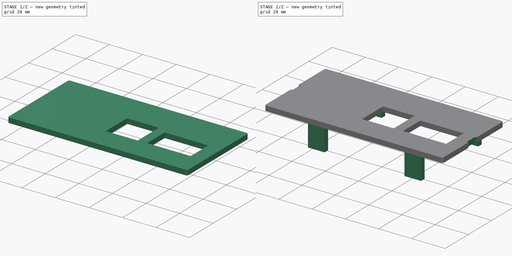
[diagram: build sequence overview — one tinted view per stage of 2, left to right]
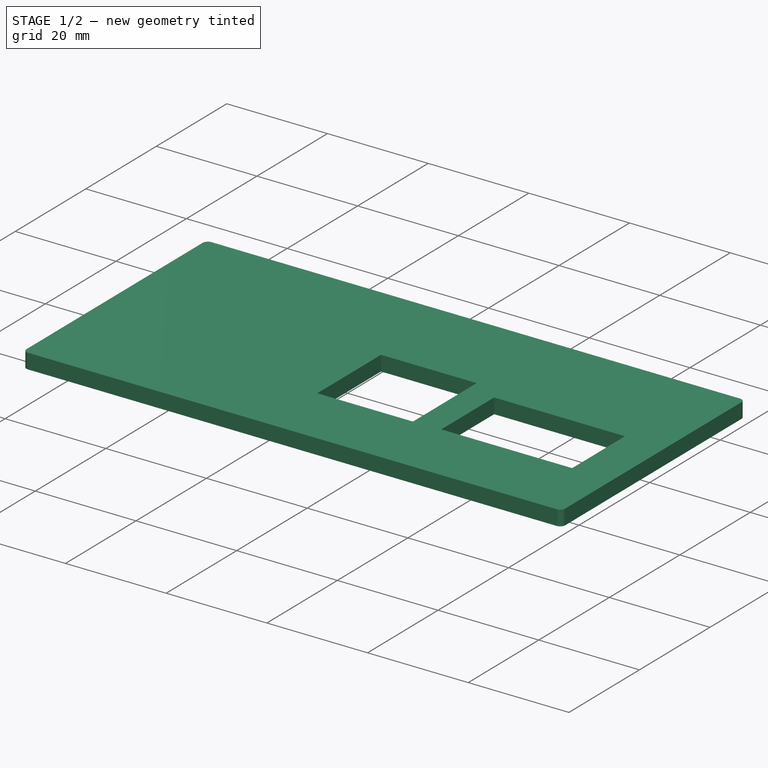
[diagram: stage 1 of 2 — iso view after this stage's code; geometry added in this stage tinted green]
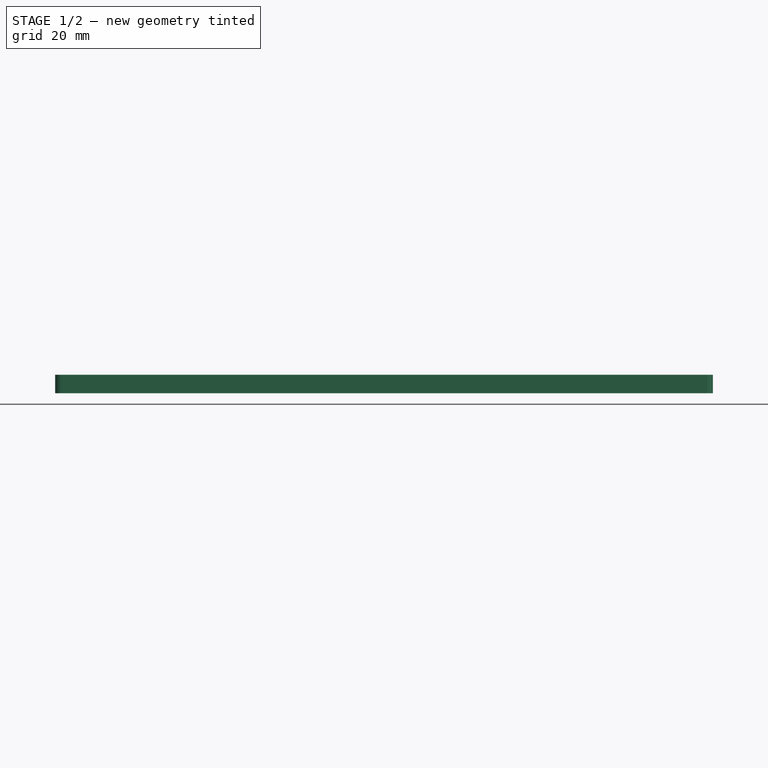
[diagram: stage 1 of 2 — front view after this stage's code; geometry added in this stage tinted green]
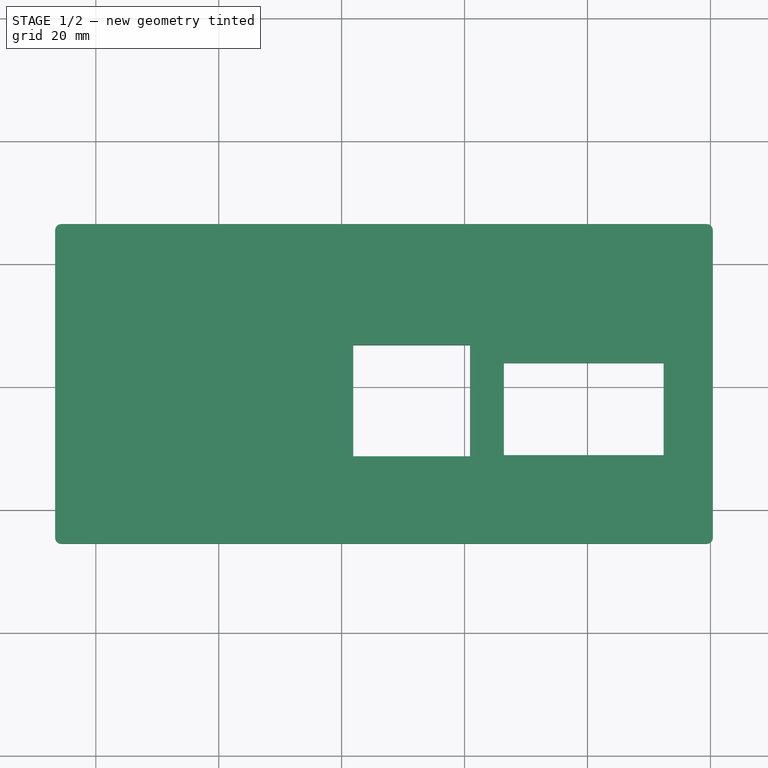
[diagram: stage 1 of 2 — top view after this stage's code; geometry added in this stage tinted green]
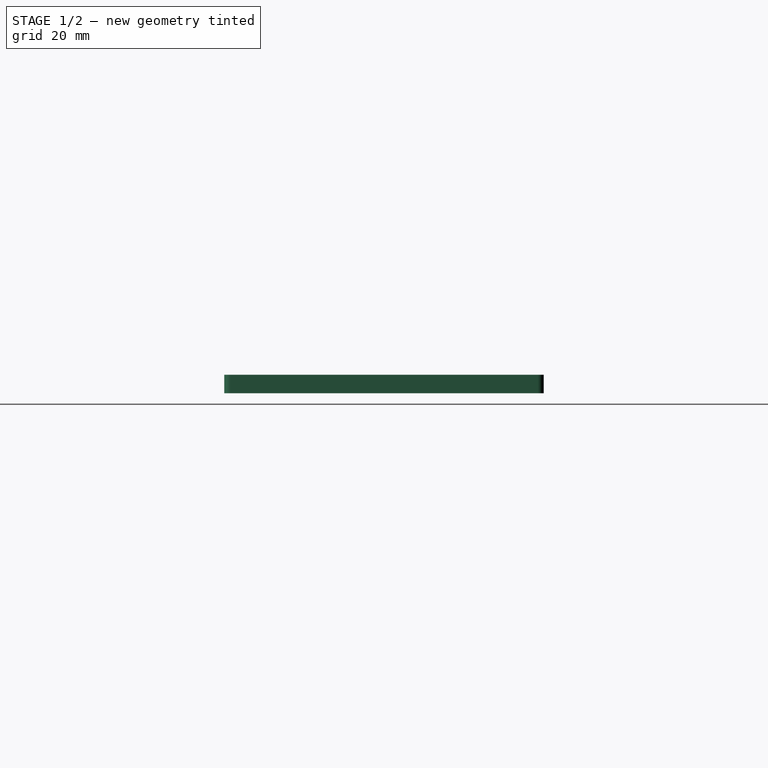
[diagram: stage 1 of 2 — right view after this stage's code; geometry added in this stage tinted green]
FCSTD DOCUMENT  (FreeCAD 2023.131R26244 +5365 (Git))
Label: ESP32FreqencyCounterCover
License: All rights reserved
LicenseURL: http://en.wikipedia.org/wiki/All_rights_reserved
objects: Sketcher::SketchObject×3, PartDesign::Pad×2, PartDesign::Fillet×1, PartDesign::ShapeBinder×1, PartDesign::Pocket×1, PartDesign::Body×1
note: 20 computed .brp shape members not serialized (recipe doc carries the construction recipe); baked Part::Feature solids carry a one-line shape summary decoded from their .brp

FEATURE [Sketcher::SketchObject] Sketch
  ArcFitTolerance = 1e-06
  ExternalBSplineMaxDegree = 5
  ExternalBSplineTolerance = 0.0001
  FixShape = 1
  FullyConstrained = false
  InternalTolerance = 1e-06
  InvalidShape = false
  MakeInternals = true
  TreeRank = 12
  ValidateShape = false
  sketch-geometry (12):
    g0: LineSegment StartX=-46.6117 StartY=26.5212 StartZ=0 EndX=60.3883 EndY=26.5212 EndZ=0
    g1: LineSegment StartX=60.3883 StartY=26.5212 StartZ=0 EndX=60.3883 EndY=-25.4788 EndZ=0
    g2: LineSegment StartX=60.3883 StartY=-25.4788 StartZ=0 EndX=-46.6117 EndY=-25.4788 EndZ=0
    g3: LineSegment StartX=-46.6117 StartY=-25.4788 StartZ=0 EndX=-46.6117 EndY=26.5212 EndZ=0
    g4: LineSegment StartX=1.8883 StartY=6.81684 StartZ=0 EndX=20.8883 EndY=6.81684 EndZ=0
    g5: LineSegment StartX=20.8883 StartY=6.81684 StartZ=0 EndX=20.8883 EndY=-11.2588 EndZ=0
    g6: LineSegment StartX=20.8883 StartY=-11.2588 StartZ=0 EndX=1.8883 EndY=-11.2588 EndZ=0
    g7: LineSegment StartX=1.8883 StartY=-11.2588 StartZ=0 EndX=1.8883 EndY=6.81684 EndZ=0
    g8: LineSegment StartX=26.3883 StartY=3.91123 StartZ=0 EndX=52.3883 EndY=3.91123 EndZ=0
    g9: LineSegment StartX=52.3883 StartY=3.91123 StartZ=0 EndX=52.3883 EndY=-11.0888 EndZ=0
    g10: LineSegment StartX=52.3883 StartY=-11.0888 StartZ=0 EndX=26.3883 EndY=-11.0888 EndZ=0
    g11: LineSegment StartX=26.3883 StartY=-11.0888 StartZ=0 EndX=26.3883 EndY=3.91123 EndZ=0
  constraints (33):
    c: Coincident(g0,g1)
    c: Coincident(g1,g2)
    c: Coincident(g2,g3)
    c: Coincident(g3,g0)
    c: Horizontal(g0)
    c: Horizontal(g2)
    c: Vertical(g1)
    c: Vertical(g3)
    c: Coincident(g4,g5)
    c: Coincident(g5,g6)
    c: Coincident(g6,g7)
    c: Coincident(g7,g4)
    c: Horizontal(g4)
    c: Horizontal(g6)
    c: Vertical(g5)
    c: Vertical(g7)
    c: Coincident(g8,g9)
    c: Coincident(g9,g10)
    c: Coincident(g10,g11)
    c: Coincident(g11,g8)
    c: Horizontal(g8)
    c: Horizontal(g10)
    c: Vertical(g9)
    c: Vertical(g11)
    c: DistanceY(g9,g9) = 15
    c: DistanceY(g1,g1) = 52
    c: DistanceX(g9,g1) = 8
    c: DistanceX(g10,g10) = 26
    c: DistanceX(g5,g1) = 39.5
    c: DistanceX(g6,g6) = 19
    c: DistanceX(g0,g0) = 107
    c: DistanceY(g1,g5) = 14.22
    c: DistanceY(g1,g9) = 14.39
FEATURE [PartDesign::Pad] Pad
  AddSubType = 0
  AlongSketchNormal = false
  AutoTaperInnerAngle = true
  CheckUpToFaceLimits = true
  ClaimChildren = false
  Direction = (0,0,1)
  Fit = 0
  FitJoin = 0
  FixShape = 1
  InnerFit = 0
  InnerFitJoin = 0
  InvalidShape = false
  Length = 3
  Length2 = 100
  Linearize = true
  NewSolid = false
  Profile = -> Sketch
  Suppress = false
  TaperInnerAngle = 0
  TaperInnerAngleRev = 0
  TreeRank = 13
  Type = 0
  ValidateShape = false
  _ProfileBasedVersion = 1
FEATURE [PartDesign::Fillet] Fillet
  AddSubType = 0
  Base = -> Pad [Edge1,Edge2,Edge5,Edge8]
  BaseFeature = -> Pad
  FixShape = 1
  InvalidShape = false
  NewSolid = false
  Radius = 1
  SupportTransform = false
  Suppress = false
  TreeRank = 14
  ValidateShape = false
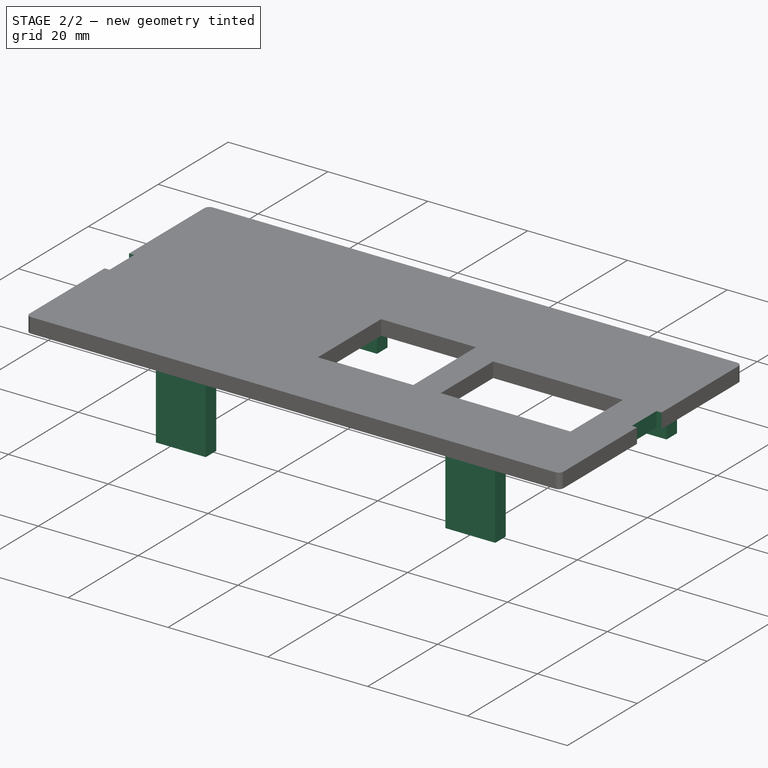
[diagram: stage 2 of 2 — iso view after this stage's code; geometry added in this stage tinted green]
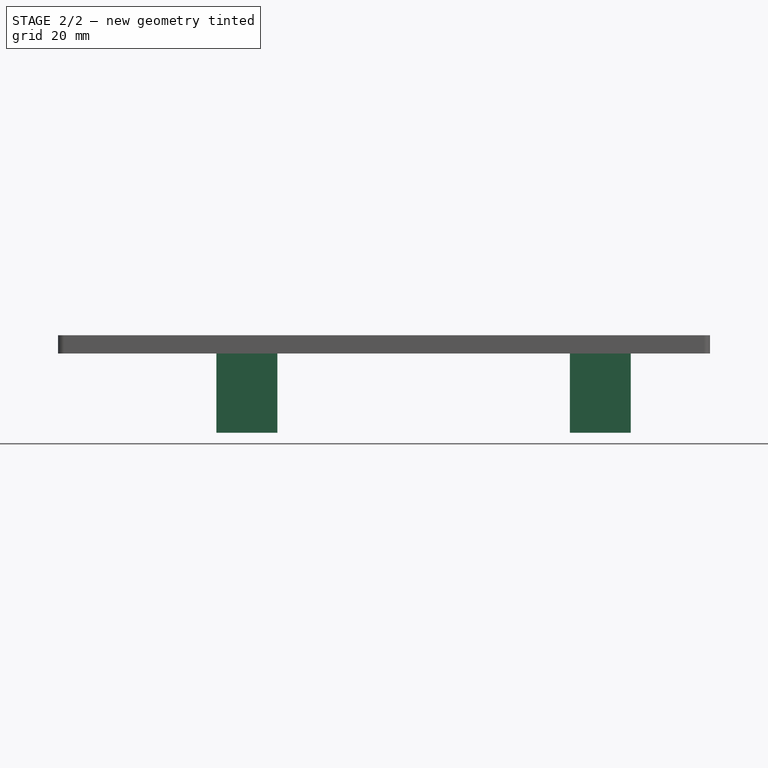
[diagram: stage 2 of 2 — front view after this stage's code; geometry added in this stage tinted green]
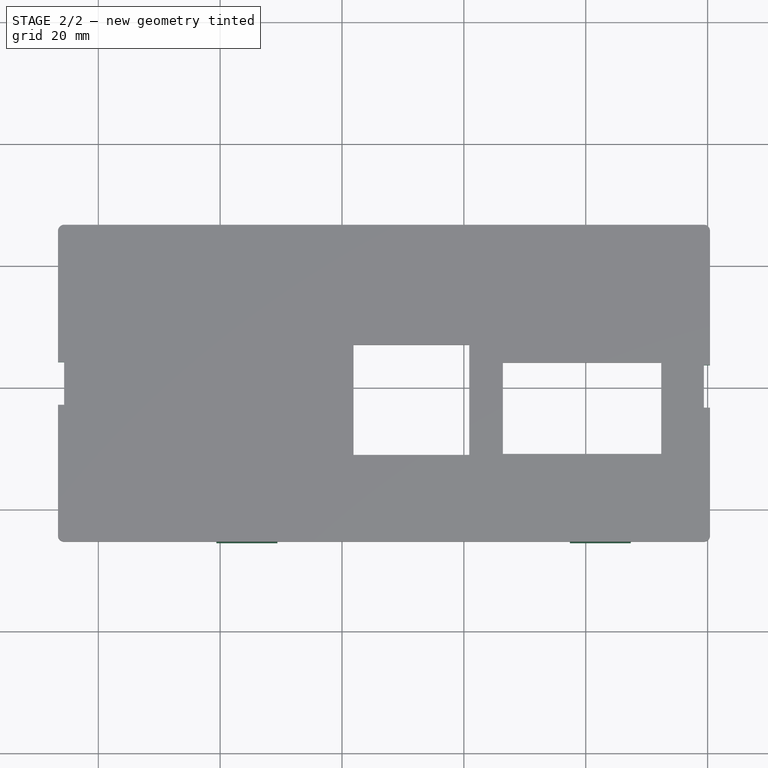
[diagram: stage 2 of 2 — top view after this stage's code; geometry added in this stage tinted green]
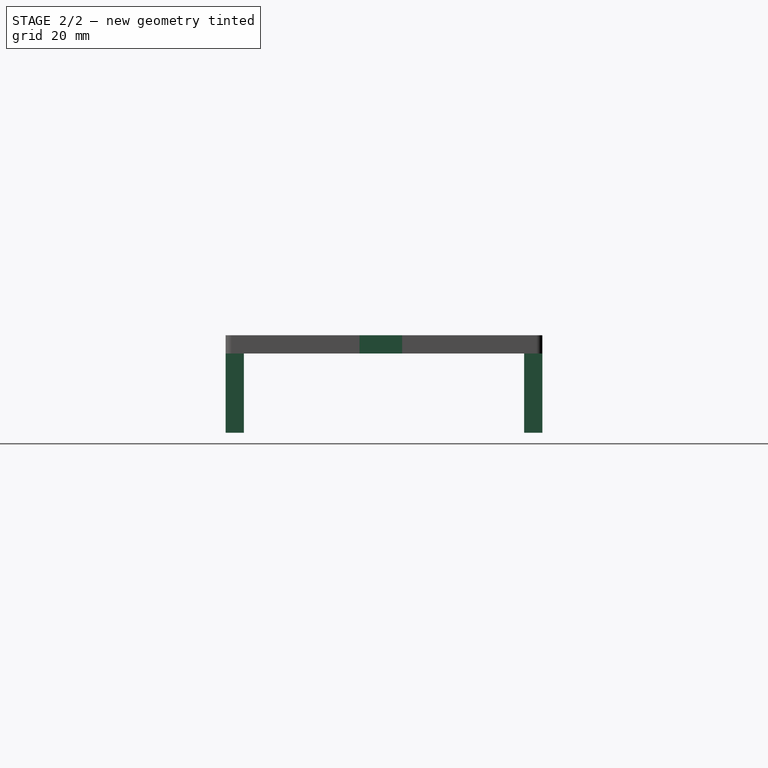
[diagram: stage 2 of 2 — right view after this stage's code; geometry added in this stage tinted green]
FEATURE [PartDesign::ShapeBinder] ShapeBinder
  FixShape = 1
  InvalidShape = false
  Support = -> [Fillet]
  TraceSupport = false
  TreeRank = 15
  ValidateShape = false
FEATURE [Sketcher::SketchObject] Sketch001
  ArcFitTolerance = 1e-06
  AttachmentSupport = -> [ShapeBinder]
  ExternalBSplineMaxDegree = 5
  ExternalBSplineTolerance = 0.0001
  ExternalGeometry = -> [Fillet]
  FixShape = 1
  FullyConstrained = false
  InternalTolerance = 1e-06
  InvalidShape = false
  MakeInternals = true
  MapMode = 5
  Placement = pos=(0,0,0) rot=(1,0,0;3.14159rad)
  Support = -> [ShapeBinder]
  TreeRank = 16
  ValidateShape = false
  sketch-geometry (8):
    g0: LineSegment StartX=-46.6117 StartY=3.01862 StartZ=0 EndX=-45.6117 EndY=3.01862 EndZ=0
    g1: LineSegment StartX=-45.6117 StartY=3.01862 StartZ=0 EndX=-45.6117 EndY=-3.98138 EndZ=0
    g2: LineSegment StartX=-45.6117 StartY=-3.98138 StartZ=0 EndX=-46.6117 EndY=-3.98138 EndZ=0
    g3: LineSegment StartX=-46.6117 StartY=-3.98138 StartZ=0 EndX=-46.6117 EndY=3.01862 EndZ=0
    g4: LineSegment StartX=60.3883 StartY=3.5 StartZ=0 EndX=59.3883 EndY=3.5 EndZ=0
    g5: LineSegment StartX=59.3883 StartY=3.5 StartZ=0 EndX=59.3883 EndY=-3.5 EndZ=0
    g6: LineSegment StartX=59.3883 StartY=-3.5 StartZ=0 EndX=60.3883 EndY=-3.5 EndZ=0
    g7: LineSegment StartX=60.3883 StartY=-3.5 StartZ=0 EndX=60.3883 EndY=3.5 EndZ=0
  constraints (22):
    c: Coincident(g0,g1)
    c: Coincident(g1,g2)
    c: Coincident(g2,g3)
    c: Coincident(g3,g0)
    c: Horizontal(g0)
    c: Horizontal(g2)
    c: Vertical(g1)
    c: Vertical(g3)
    c: DistanceY(g1,g1) = 7
    c: DistanceX(g2,g2) = 1
    c: PointOnObject(g2,g-5)
    c: Coincident(g4,g5)
    c: Coincident(g5,g6)
    c: Coincident(g6,g7)
    c: Coincident(g7,g4)
    c: Horizontal(g4)
    c: Horizontal(g6)
    c: Vertical(g7)
    c: DistanceX(g6,g6) = 1
    c: DistanceY(g6,g4) = 7
    c: PointOnObject(g6,g-4)
    c: Symmetric(g5,g4,g-1)
FEATURE [PartDesign::Pocket] Pocket
  AddSubType = 1
  AutoTaperInnerAngle = true
  BaseFeature = -> Fillet
  CheckUpToFaceLimits = true
  ClaimChildren = false
  Fit = 0
  FitJoin = 0
  FixShape = 1
  InnerFit = 0
  InnerFitJoin = 0
  InvalidShape = false
  Length = 5
  Length2 = 100
  Linearize = true
  NewSolid = false
  Profile = -> Sketch001
  Suppress = false
  TaperInnerAngle = 0
  TaperInnerAngleRev = 0
  TreeRank = 17
  Type = 1
  ValidateShape = false
  _ProfileBasedVersion = 1
  _Version = 1
FEATURE [Sketcher::SketchObject] Sketch002
  ArcFitTolerance = 1e-06
  AttachmentSupport = -> [ShapeBinder]
  ExternalBSplineMaxDegree = 5
  ExternalBSplineTolerance = 0.0001
  ExternalGeometry = -> [ShapeBinder]
  FixShape = 1
  FullyConstrained = true
  InternalTolerance = 1e-06
  InvalidShape = false
  MakeInternals = true
  MapMode = 5
  Placement = pos=(0,0,0) rot=(1,0,0;3.14159rad)
  Support = -> [ShapeBinder]
  TreeRank = 18
  ValidateShape = false
  sketch-geometry (16):
    g0: LineSegment StartX=-20.6117 StartY=25.4788 StartZ=0 EndX=-10.6117 EndY=25.4788 EndZ=0
    g1: LineSegment StartX=-10.6117 StartY=25.4788 StartZ=0 EndX=-10.6117 EndY=22.4788 EndZ=0
    g2: LineSegment StartX=-10.6117 StartY=22.4788 StartZ=0 EndX=-20.6117 EndY=22.4788 EndZ=0
    g3: LineSegment StartX=-20.6117 StartY=22.4788 StartZ=0 EndX=-20.6117 EndY=25.4788 EndZ=0
    g4: LineSegment StartX=37.3883 StartY=25.4788 StartZ=0 EndX=47.3883 EndY=25.4788 EndZ=0
    g5: LineSegment StartX=47.3883 StartY=25.4788 StartZ=0 EndX=47.3883 EndY=22.4788 EndZ=0
    g6: LineSegment StartX=47.3883 StartY=22.4788 StartZ=0 EndX=37.3883 EndY=22.4788 EndZ=0
    g7: LineSegment StartX=37.3883 StartY=22.4788 StartZ=0 EndX=37.3883 EndY=25.4788 EndZ=0
    g8: LineSegment StartX=-20.6117 StartY=-23.5212 StartZ=0 EndX=-10.6117 EndY=-23.5212 EndZ=0
    g9: LineSegment StartX=-10.6117 StartY=-23.5212 StartZ=0 EndX=-10.6117 EndY=-26.5212 EndZ=0
    g10: LineSegment StartX=-10.6117 StartY=-26.5212 StartZ=0 EndX=-20.6117 EndY=-26.5212 EndZ=0
    g11: LineSegment StartX=-20.6117 StartY=-26.5212 StartZ=0 EndX=-20.6117 EndY=-23.5212 EndZ=0
    g12: LineSegment StartX=37.3883 StartY=-23.5212 StartZ=0 EndX=47.3883 EndY=-23.5212 EndZ=0
    g13: LineSegment StartX=47.3883 StartY=-23.5212 StartZ=0 EndX=47.3883 EndY=-26.5212 EndZ=0
    g14: LineSegment StartX=47.3883 StartY=-26.5212 StartZ=0 EndX=37.3883 EndY=-26.5212 EndZ=0
    g15: LineSegment StartX=37.3883 StartY=-26.5212 StartZ=0 EndX=37.3883 EndY=-23.5212 EndZ=0
  constraints (48):
    c: Coincident(g0,g1)
    c: Coincident(g1,g2)
    c: Coincident(g2,g3)
    c: Coincident(g3,g0)
    c: Horizontal(g0)
    c: Horizontal(g2)
    c: Vertical(g1)
    c: Vertical(g3)
    c: PointOnObject(g0,g-4)
    c: Coincident(g4,g5)
    c: Coincident(g5,g6)
    c: Coincident(g6,g7)
    c: Coincident(g7,g4)
    c: Horizontal(g4)
    c: Horizontal(g6)
    c: Vertical(g5)
    c: Vertical(g7)
    c: PointOnObject(g4,g-4)
    c: Coincident(g8,g9)
    c: Coincident(g9,g10)
    c: Coincident(g10,g11)
    c: Coincident(g11,g8)
    c: Horizontal(g8)
    c: Horizontal(g10)
    c: Vertical(g9)
    c: Vertical(g11)
    c: Coincident(g12,g13)
    c: Coincident(g13,g14)
    c: Coincident(g14,g15)
    c: Coincident(g15,g12)
    c: Horizontal(g12)
    c: Horizontal(g14)
    c: Vertical(g13)
    c: Vertical(g15)
    c: Equal(g0,g4)
    c: Equal(g4,g14)
    c: Equal(g14,g10)
    c: DistanceX(g0,g0) = 10
    c: Equal(g1,g5)
    c: Equal(g5,g9)
    c: Equal(g9,g13)
    c: DistanceY(g1,g1) = 3
    c: PointOnObject(g13,g-5)
    c: PointOnObject(g9,g-5)
    c: Vertical(g5,g12)
    c: Vertical(g1,g9)
    c: DistanceX(g12,g-5) = 12
    c: DistanceX(g8,g-5) = 70
FEATURE [PartDesign::Pad] Pad001
  AddSubType = 0
  AlongSketchNormal = false
  AutoTaperInnerAngle = true
  BaseFeature = -> Pocket
  CheckUpToFaceLimits = true
  ClaimChildren = false
  Direction = (0,0,-1)
  Fit = 0
  FitJoin = 0
  FixShape = 1
  InnerFit = 0
  InnerFitJoin = 0
  InvalidShape = false
  Length = 13
  Length2 = 100
  Linearize = true
  NewSolid = false
  Profile = -> Sketch002
  Suppress = false
  TaperInnerAngle = 0
  TaperInnerAngleRev = 0
  TreeRank = 19
  Type = 0
  ValidateShape = false
  _ProfileBasedVersion = 1
FEATURE [PartDesign::Body] Body
  AutoGroupSolids = false
  ClaimAllChildren = false
  ExportMode = 0
  FixShape = 1
  Group = -> [Sketch,Pad,Fillet,ShapeBinder,Sketch001,Pocket,Sketch002,Pad001]
  InvalidShape = false
  Origin = -> Origin
  Tip = -> Pad001
  TreeRank = 11
  ValidateShape = false
  _ExportChildren = -> [Pad,Fillet,ShapeBinder,Pocket,Pad001]
  _GroupVersion = 1
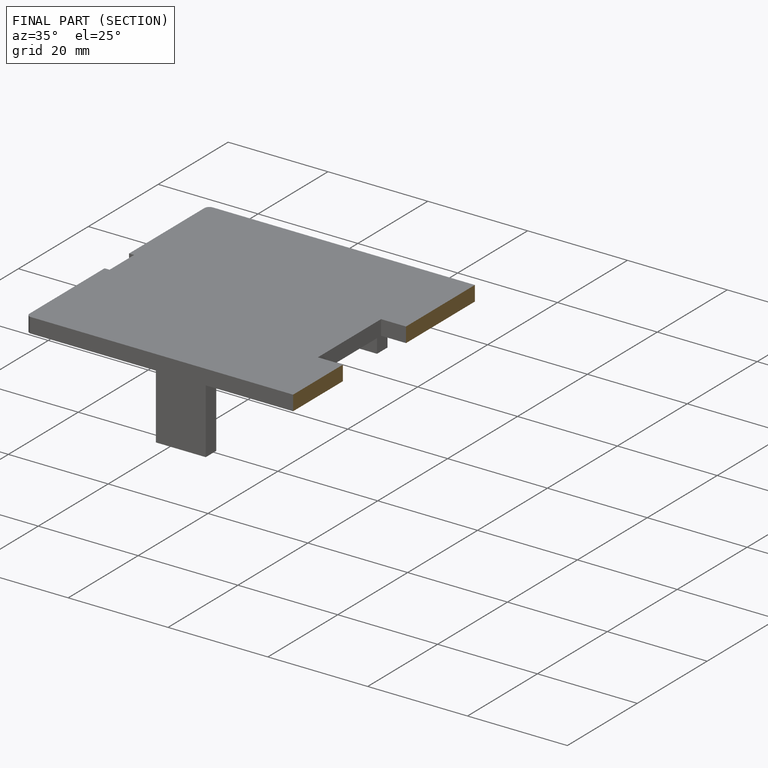
[diagram: finished part — half-section view (interior)]
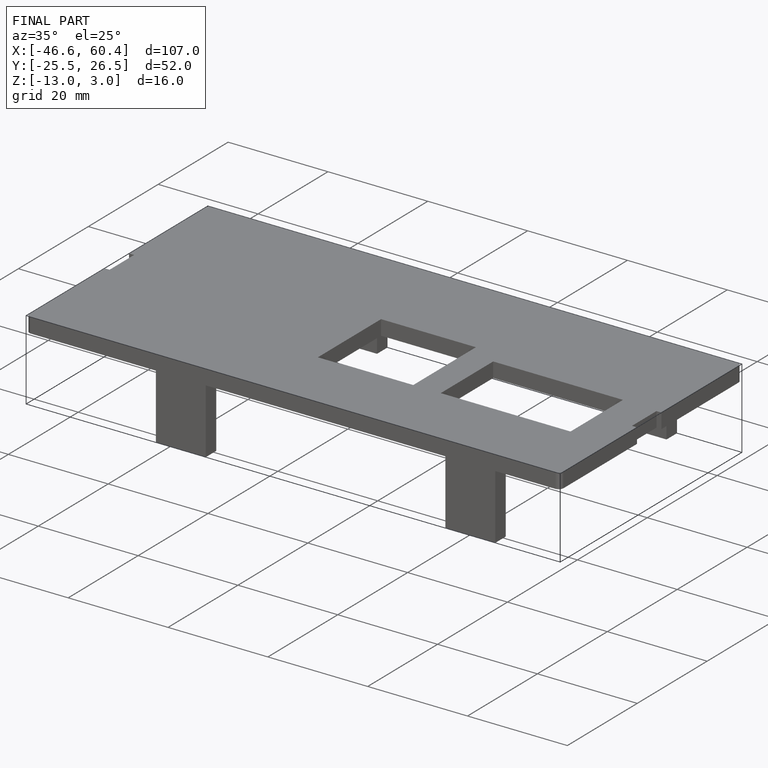
[diagram: finished part — iso view with bounding-box wireframe]
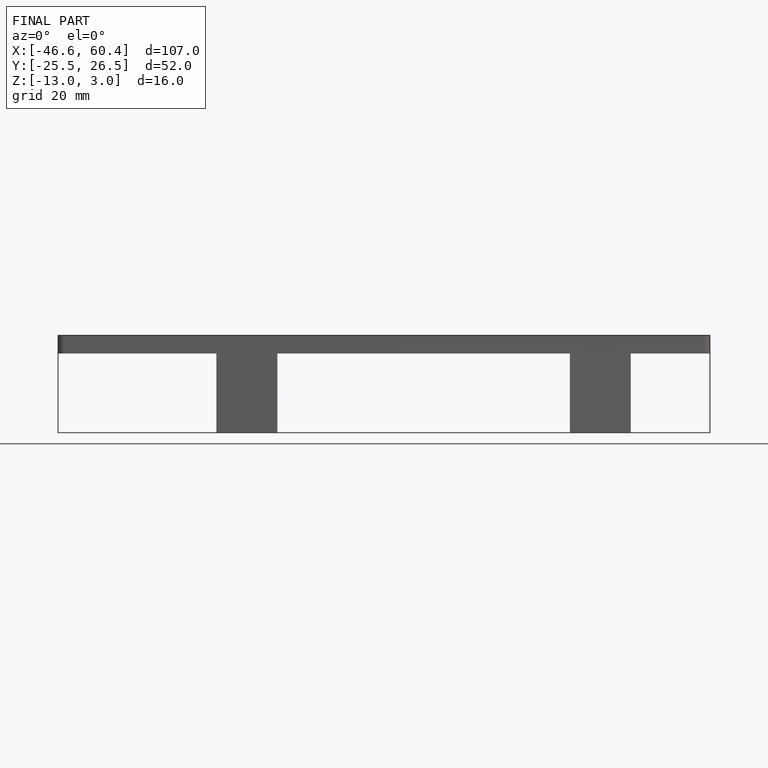
[diagram: finished part — front view with bounding-box wireframe]
